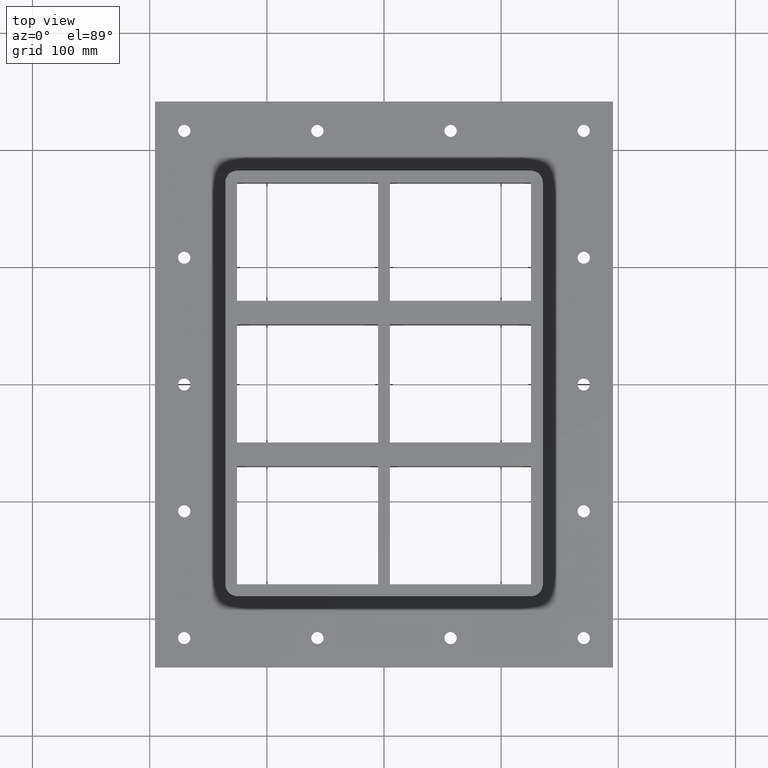
[diagram: clean part render]
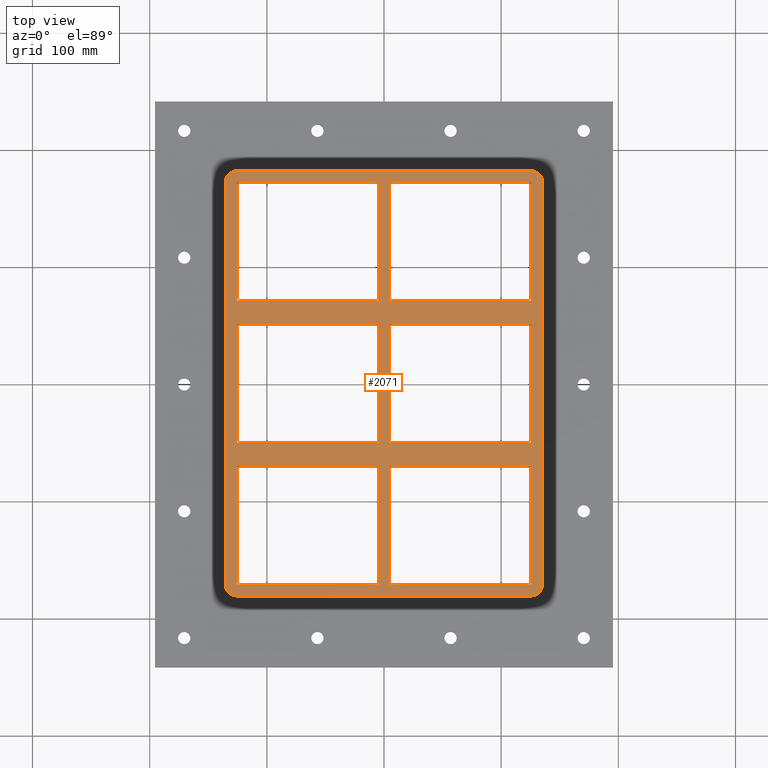
[diagram: same view with one face highlighted and labeled with its STEP entity id]
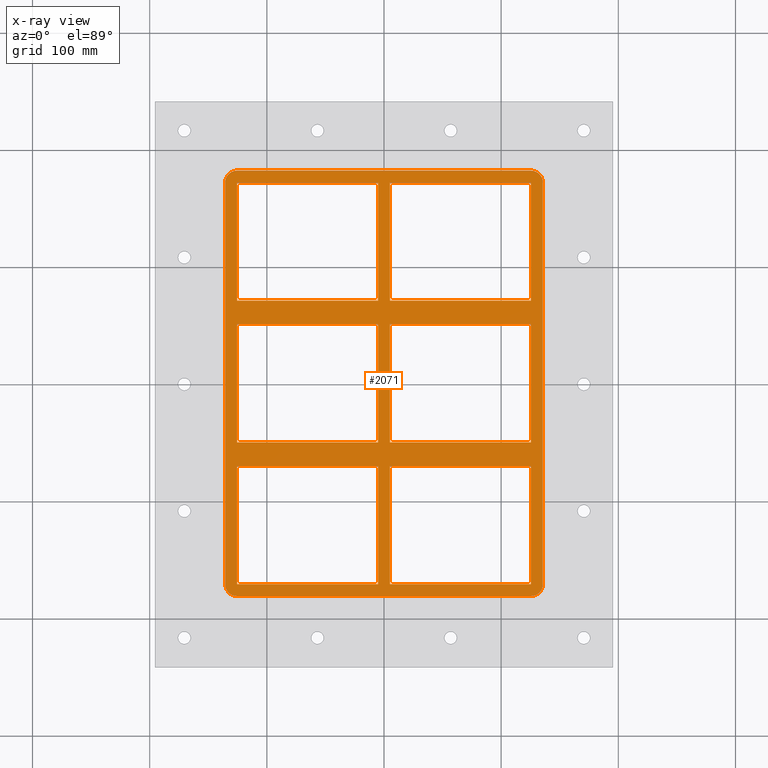
[diagram: x-ray of the same camera — body ghosted, the highlighted face saturated]
A machine part, top view. The second image highlights one B-rep face of the part: STEP entity #2071.
The next image is the same camera in x-ray: the body ghosted, the highlighted face saturated — about 0% of this face is hidden behind the body in this view.
In plain terms, the highlighted planar face has unit normal (0, 0, 1).
Its self-contained STEP definition (entity closure, byte-faithful):
#870=CARTESIAN_POINT('',(135.50000000000003,-171.50000000000003,30.0));
#871=VERTEX_POINT('',#870);
#878=CARTESIAN_POINT('',(125.5,-181.50000000000003,30.0));
#879=VERTEX_POINT('',#878);
#880=CARTESIAN_POINT('',(125.5,-171.50000000000003,30.0));
#881=DIRECTION('',(0.0,0.0,-1.0));
#882=DIRECTION('',(0.707106781186547,-0.707106781186547,0.0));
#883=AXIS2_PLACEMENT_3D('',#880,#881,#882);
#884=CIRCLE('',#883,9.999999999999998);
#885=EDGE_CURVE('',#871,#879,#884,.T.);
#926=CARTESIAN_POINT('',(135.49999999999994,171.49999999999994,30.0));
#927=VERTEX_POINT('',#926);
#934=CARTESIAN_POINT('',(135.50000000000003,-171.50000000000003,30.0));
#935=DIRECTION('',(0.0,1.0,0.0));
#936=VECTOR('',#935,343.0);
#937=LINE('',#934,#936);
#938=EDGE_CURVE('',#871,#927,#937,.T.);
#975=CARTESIAN_POINT('',(125.49999999999994,181.5,30.0));
#976=VERTEX_POINT('',#975);
#983=CARTESIAN_POINT('',(125.49999999999994,171.5,30.0));
#984=DIRECTION('',(0.0,0.0,-1.0));
#985=DIRECTION('',(0.707106781186547,0.707106781186547,0.0));
#986=AXIS2_PLACEMENT_3D('',#983,#984,#985);
#987=CIRCLE('',#986,9.999999999999998);
#988=EDGE_CURVE('',#976,#927,#987,.T.);
#1024=CARTESIAN_POINT('',(-125.50000000000009,181.50000000000006,30.0));
#1025=VERTEX_POINT('',#1024);
#1032=CARTESIAN_POINT('',(125.49999999999994,181.5,30.0));
#1033=DIRECTION('',(-1.0,0.0,0.0));
#1034=VECTOR('',#1033,251.0);
#1035=LINE('',#1032,#1034);
#1036=EDGE_CURVE('',#976,#1025,#1035,.T.);
#1314=CARTESIAN_POINT('',(-125.49999999999994,-181.50000000000003,30.0));
#1315=VERTEX_POINT('',#1314);
#1316=CARTESIAN_POINT('',(-125.49999999999994,-181.50000000000003,30.0));
#1317=DIRECTION('',(1.0,0.0,0.0));
#1318=VECTOR('',#1317,250.99999999999994);
#1319=LINE('',#1316,#1318);
#1320=EDGE_CURVE('',#1315,#879,#1319,.T.);
#1338=CARTESIAN_POINT('',(-135.49999999999994,-171.50000000000006,30.0));
#1339=VERTEX_POINT('',#1338);
#1340=CARTESIAN_POINT('',(-125.49999999999994,-171.50000000000006,30.0));
#1341=DIRECTION('',(0.0,0.0,-1.0));
#1342=DIRECTION('',(-0.707106781186547,-0.707106781186547,0.0));
#1343=AXIS2_PLACEMENT_3D('',#1340,#1341,#1342);
#1344=CIRCLE('',#1343,9.999999999999998);
#1345=EDGE_CURVE('',#1315,#1339,#1344,.T.);
#1362=CARTESIAN_POINT('',(-135.50000000000009,171.50000000000006,30.0));
#1363=VERTEX_POINT('',#1362);
#1370=CARTESIAN_POINT('',(-125.50000000000009,171.50000000000006,30.0));
#1371=DIRECTION('',(0.0,0.0,-1.0));
#1372=DIRECTION('',(-0.707106781186547,0.707106781186547,0.0));
#1373=AXIS2_PLACEMENT_3D('',#1370,#1371,#1372);
#1374=CIRCLE('',#1373,9.999999999999998);
#1375=EDGE_CURVE('',#1363,#1025,#1374,.T.);
#1421=CARTESIAN_POINT('',(4.999999999999953,171.5,30.0));
#1422=VERTEX_POINT('',#1421);
#1429=CARTESIAN_POINT('',(4.999999999999971,70.500000000000256,30.0));
#1430=VERTEX_POINT('',#1429);
#1431=CARTESIAN_POINT('',(4.999999999999971,70.500000000000256,30.0));
#1432=DIRECTION('',(0.0,1.0,0.0));
#1433=VECTOR('',#1432,100.99999999999972);
#1434=LINE('',#1431,#1433);
#1435=EDGE_CURVE('',#1430,#1422,#1434,.T.);
#1453=CARTESIAN_POINT('',(125.49999999999997,70.499999999999972,30.0));
#1454=VERTEX_POINT('',#1453);
#1455=CARTESIAN_POINT('',(125.49999999999997,70.499999999999972,30.0));
#1456=DIRECTION('',(-1.0,0.0,0.0));
#1457=VECTOR('',#1456,120.5);
#1458=LINE('',#1455,#1457);
#1459=EDGE_CURVE('',#1454,#1430,#1458,.T.);
#1477=CARTESIAN_POINT('',(125.49999999999996,171.5,30.0));
#1478=VERTEX_POINT('',#1477);
#1479=CARTESIAN_POINT('',(125.49999999999996,171.5,30.0));
#1480=DIRECTION('',(0.0,-1.0,0.0));
#1481=VECTOR('',#1480,101.00000000000003);
#1482=LINE('',#1479,#1481);
#1483=EDGE_CURVE('',#1478,#1454,#1482,.T.);
#1501=CARTESIAN_POINT('',(4.999999999999953,171.5,30.0));
#1502=DIRECTION('',(1.0,0.0,0.0));
#1503=VECTOR('',#1502,120.49999999999999);
#1504=LINE('',#1501,#1503);
#1505=EDGE_CURVE('',#1422,#1478,#1504,.T.);
#1517=CARTESIAN_POINT('',(4.999999999999989,50.499999999999957,30.0));
#1518=VERTEX_POINT('',#1517);
#1525=CARTESIAN_POINT('',(5.000000000000005,-50.499999999999758,30.0));
#1526=VERTEX_POINT('',#1525);
#1527=CARTESIAN_POINT('',(5.000000000000005,-50.499999999999758,30.0));
#1528=DIRECTION('',(0.0,1.0,0.0));
#1529=VECTOR('',#1528,100.9999999999997);
#1530=LINE('',#1527,#1529);
#1531=EDGE_CURVE('',#1526,#1518,#1530,.T.);
#1549=CARTESIAN_POINT('',(125.5,-50.500000000000043,30.0));
#1550=VERTEX_POINT('',#1549);
#1551=CARTESIAN_POINT('',(125.5,-50.50000000000005,30.0));
#1552=DIRECTION('',(-1.0,0.0,0.0));
#1553=VECTOR('',#1552,120.5);
#1554=LINE('',#1551,#1553);
#1555=EDGE_CURVE('',#1550,#1526,#1554,.T.);
#1573=CARTESIAN_POINT('',(125.49999999999999,50.499999999999972,30.0));
#1574=VERTEX_POINT('',#1573);
#1575=CARTESIAN_POINT('',(125.49999999999999,50.499999999999972,30.0));
#1576=DIRECTION('',(0.0,-1.0,0.0));
#1577=VECTOR('',#1576,101.00000000000001);
#1578=LINE('',#1575,#1577);
#1579=EDGE_CURVE('',#1574,#1550,#1578,.T.);
#1597=CARTESIAN_POINT('',(4.999999999999988,50.499999999999957,30.0));
#1598=DIRECTION('',(1.0,0.0,0.0));
#1599=VECTOR('',#1598,120.49999999999999);
#1600=LINE('',#1597,#1599);
#1601=EDGE_CURVE('',#1518,#1574,#1600,.T.);
#1613=CARTESIAN_POINT('',(5.000000000000041,-70.500000000000043,30.0));
#1614=VERTEX_POINT('',#1613);
#1621=CARTESIAN_POINT('',(5.000000000000059,-171.49999999999977,30.0));
#1622=VERTEX_POINT('',#1621);
#1623=CARTESIAN_POINT('',(5.00000000000006,-171.49999999999977,30.0));
#1624=DIRECTION('',(0.0,1.0,0.0));
#1625=VECTOR('',#1624,100.99999999999973);
#1626=LINE('',#1623,#1625);
#1627=EDGE_CURVE('',#1622,#1614,#1626,.T.);
#1645=CARTESIAN_POINT('',(125.50000000000006,-171.50000000000006,30.0));
#1646=VERTEX_POINT('',#1645);
#1647=CARTESIAN_POINT('',(125.50000000000006,-171.50000000000006,30.0));
#1648=DIRECTION('',(-1.0,0.0,0.0));
#1649=VECTOR('',#1648,120.5);
#1650=LINE('',#1647,#1649);
#1651=EDGE_CURVE('',#1646,#1622,#1650,.T.);
#1669=CARTESIAN_POINT('',(125.50000000000004,-70.500000000000043,30.0));
#1670=VERTEX_POINT('',#1669);
#1671=CARTESIAN_POINT('',(125.50000000000004,-70.500000000000043,30.0));
#1672=DIRECTION('',(0.0,-1.0,0.0));
#1673=VECTOR('',#1672,101.00000000000001);
#1674=LINE('',#1671,#1673);
#1675=EDGE_CURVE('',#1670,#1646,#1674,.T.);
#1693=CARTESIAN_POINT('',(5.000000000000041,-70.500000000000043,30.0));
#1694=DIRECTION('',(1.0,0.0,0.0));
#1695=VECTOR('',#1694,120.50000000000001);
#1696=LINE('',#1693,#1695);
#1697=EDGE_CURVE('',#1614,#1670,#1696,.T.);
#1709=CARTESIAN_POINT('',(-125.50000000000009,171.5,30.0));
#1710=VERTEX_POINT('',#1709);
#1717=CARTESIAN_POINT('',(-125.50000000000006,70.500000000000256,30.0));
#1718=VERTEX_POINT('',#1717);
#1719=CARTESIAN_POINT('',(-125.50000000000004,70.500000000000256,30.0));
#1720=DIRECTION('',(0.0,1.0,0.0));
#1721=VECTOR('',#1720,100.99999999999974);
#1722=LINE('',#1719,#1721);
#1723=EDGE_CURVE('',#1718,#1710,#1722,.T.);
#1741=CARTESIAN_POINT('',(-5.000000000000041,70.499999999999972,30.0));
#1742=VERTEX_POINT('',#1741);
#1743=CARTESIAN_POINT('',(-5.000000000000041,70.499999999999972,30.0));
#1744=DIRECTION('',(-1.0,0.0,0.0));
#1745=VECTOR('',#1744,120.50000000000003);
#1746=LINE('',#1743,#1745);
#1747=EDGE_CURVE('',#1742,#1718,#1746,.T.);
#1765=CARTESIAN_POINT('',(-5.00000000000006,171.5,30.0));
#1766=VERTEX_POINT('',#1765);
#1767=CARTESIAN_POINT('',(-5.00000000000006,171.5,30.0));
#1768=DIRECTION('',(0.0,-1.0,0.0));
#1769=VECTOR('',#1768,101.00000000000003);
#1770=LINE('',#1767,#1769);
#1771=EDGE_CURVE('',#1766,#1742,#1770,.T.);
#1789=CARTESIAN_POINT('',(-125.50000000000009,171.5,30.0));
#1790=DIRECTION('',(1.0,0.0,0.0));
#1791=VECTOR('',#1790,120.50000000000003);
#1792=LINE('',#1789,#1791);
#1793=EDGE_CURVE('',#1710,#1766,#1792,.T.);
#1805=CARTESIAN_POINT('',(-125.50000000000003,50.499999999999957,30.0));
#1806=VERTEX_POINT('',#1805);
#1813=CARTESIAN_POINT('',(-125.5,-50.499999999999758,30.0));
#1814=VERTEX_POINT('',#1813);
#1815=CARTESIAN_POINT('',(-125.5,-50.499999999999758,30.0));
#1816=DIRECTION('',(0.0,1.0,0.0));
#1817=VECTOR('',#1816,100.99999999999972);
#1818=LINE('',#1815,#1817);
#1819=EDGE_CURVE('',#1814,#1806,#1818,.T.);
#1837=CARTESIAN_POINT('',(-4.999999999999994,-50.500000000000043,30.0));
#1838=VERTEX_POINT('',#1837);
#1839=CARTESIAN_POINT('',(-4.999999999999994,-50.500000000000036,30.0));
#1840=DIRECTION('',(-1.0,0.0,0.0));
#1841=VECTOR('',#1840,120.50000000000001);
#1842=LINE('',#1839,#1841);
#1843=EDGE_CURVE('',#1838,#1814,#1842,.T.);
#1861=CARTESIAN_POINT('',(-5.000000000000012,50.499999999999972,30.0));
#1862=VERTEX_POINT('',#1861);
#1863=CARTESIAN_POINT('',(-5.000000000000012,50.499999999999972,30.0));
#1864=DIRECTION('',(0.0,-1.0,0.0));
#1865=VECTOR('',#1864,101.00000000000001);
#1866=LINE('',#1863,#1865);
#1867=EDGE_CURVE('',#1862,#1838,#1866,.T.);
#1885=CARTESIAN_POINT('',(-125.50000000000003,50.499999999999957,30.0));
#1886=DIRECTION('',(1.0,0.0,0.0));
#1887=VECTOR('',#1886,120.50000000000003);
#1888=LINE('',#1885,#1887);
#1889=EDGE_CURVE('',#1806,#1862,#1888,.T.);
#1901=CARTESIAN_POINT('',(-125.49999999999997,-70.500000000000057,30.0));
#1902=VERTEX_POINT('',#1901);
#1909=CARTESIAN_POINT('',(-125.49999999999996,-171.49999999999977,30.0));
#1910=VERTEX_POINT('',#1909);
#1911=CARTESIAN_POINT('',(-125.49999999999996,-171.49999999999977,30.0));
#1912=DIRECTION('',(0.0,1.0,0.0));
#1913=VECTOR('',#1912,100.99999999999972);
#1914=LINE('',#1911,#1913);
#1915=EDGE_CURVE('',#1910,#1902,#1914,.T.);
#1933=CARTESIAN_POINT('',(-4.999999999999947,-171.50000000000006,30.0));
#1934=VERTEX_POINT('',#1933);
#1935=CARTESIAN_POINT('',(-4.999999999999947,-171.50000000000006,30.0));
#1936=DIRECTION('',(-1.0,0.0,0.0));
#1937=VECTOR('',#1936,120.50000000000001);
#1938=LINE('',#1935,#1937);
#1939=EDGE_CURVE('',#1934,#1910,#1938,.T.);
#1957=CARTESIAN_POINT('',(-4.999999999999965,-70.500000000000043,30.0));
#1958=VERTEX_POINT('',#1957);
#1959=CARTESIAN_POINT('',(-4.999999999999965,-70.500000000000043,30.0));
#1960=DIRECTION('',(0.0,-1.0,0.0));
#1961=VECTOR('',#1960,101.00000000000001);
#1962=LINE('',#1959,#1961);
#1963=EDGE_CURVE('',#1958,#1934,#1962,.T.);
#1981=CARTESIAN_POINT('',(-125.49999999999997,-70.500000000000071,30.0));
#1982=DIRECTION('',(1.0,0.0,0.0));
#1983=VECTOR('',#1982,120.5);
#1984=LINE('',#1981,#1983);
#1985=EDGE_CURVE('',#1902,#1958,#1984,.T.);
#1998=CARTESIAN_POINT('',(-135.50000000000009,171.50000000000006,30.0));
#1999=DIRECTION('',(0.0,-1.0,0.0));
#2000=VECTOR('',#1999,343.00000000000011);
#2001=LINE('',#1998,#2000);
#2002=EDGE_CURVE('',#1363,#1339,#2001,.T.);
#2020=CARTESIAN_POINT('',(-3.362190E-014,-6.724379E-015,30.0));
#2021=DIRECTION('',(0.0,0.0,1.0));
#2022=DIRECTION('',(1.0,0.0,0.0));
#2023=AXIS2_PLACEMENT_3D('',#2020,#2021,#2022);
#2024=PLANE('',#2023);
#2025=ORIENTED_EDGE('',*,*,#885,.F.);
#2026=ORIENTED_EDGE('',*,*,#938,.T.);
#2027=ORIENTED_EDGE('',*,*,#988,.F.);
#2028=ORIENTED_EDGE('',*,*,#1036,.T.);
#2029=ORIENTED_EDGE('',*,*,#1375,.F.);
#2030=ORIENTED_EDGE('',*,*,#2002,.T.);
#2031=ORIENTED_EDGE('',*,*,#1345,.F.);
#2032=ORIENTED_EDGE('',*,*,#1320,.T.);
#2033=EDGE_LOOP('',(#2025,#2026,#2027,#2028,#2029,#2030,#2031,#2032));
#2034=FACE_OUTER_BOUND('',#2033,.T.);
#2035=ORIENTED_EDGE('',*,*,#1435,.T.);
#2036=ORIENTED_EDGE('',*,*,#1505,.T.);
#2037=ORIENTED_EDGE('',*,*,#1483,.T.);
#2038=ORIENTED_EDGE('',*,*,#1459,.T.);
#2039=EDGE_LOOP('',(#2035,#2036,#2037,#2038));
#2040=FACE_BOUND('',#2039,.T.);
#2041=ORIENTED_EDGE('',*,*,#1531,.T.);
#2042=ORIENTED_EDGE('',*,*,#1601,.T.);
#2043=ORIENTED_EDGE('',*,*,#1579,.T.);
#2044=ORIENTED_EDGE('',*,*,#1555,.T.);
#2045=EDGE_LOOP('',(#2041,#2042,#2043,#2044));
#2046=FACE_BOUND('',#2045,.T.);
#2047=ORIENTED_EDGE('',*,*,#1627,.T.);
#2048=ORIENTED_EDGE('',*,*,#1697,.T.);
#2049=ORIENTED_EDGE('',*,*,#1675,.T.);
#2050=ORIENTED_EDGE('',*,*,#1651,.T.);
#2051=EDGE_LOOP('',(#2047,#2048,#2049,#2050));
#2052=FACE_BOUND('',#2051,.T.);
#2053=ORIENTED_EDGE('',*,*,#1723,.T.);
#2054=ORIENTED_EDGE('',*,*,#1793,.T.);
#2055=ORIENTED_EDGE('',*,*,#1771,.T.);
#2056=ORIENTED_EDGE('',*,*,#1747,.T.);
#2057=EDGE_LOOP('',(#2053,#2054,#2055,#2056));
#2058=FACE_BOUND('',#2057,.T.);
#2059=ORIENTED_EDGE('',*,*,#1819,.T.);
#2060=ORIENTED_EDGE('',*,*,#1889,.T.);
#2061=ORIENTED_EDGE('',*,*,#1867,.T.);
#2062=ORIENTED_EDGE('',*,*,#1843,.T.);
#2063=EDGE_LOOP('',(#2059,#2060,#2061,#2062));
#2064=FACE_BOUND('',#2063,.T.);
#2065=ORIENTED_EDGE('',*,*,#1963,.T.);
#2066=ORIENTED_EDGE('',*,*,#1939,.T.);
#2067=ORIENTED_EDGE('',*,*,#1915,.T.);
#2068=ORIENTED_EDGE('',*,*,#1985,.T.);
#2069=EDGE_LOOP('',(#2065,#2066,#2067,#2068));
#2070=FACE_BOUND('',#2069,.T.);
#2071=ADVANCED_FACE('',(#2034,#2040,#2046,#2052,#2058,#2064,#2070),#2024,.T.);